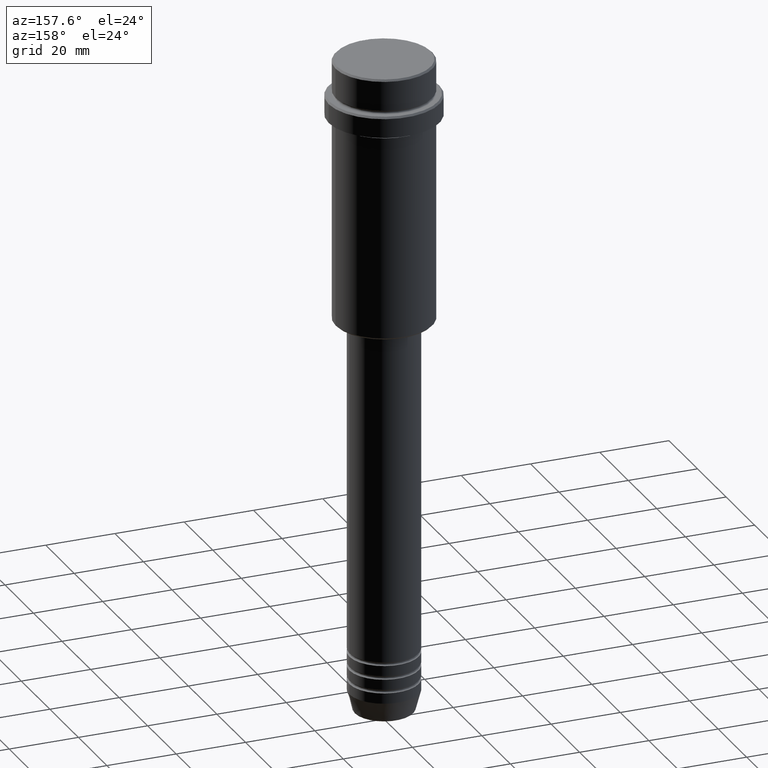
[diagram: clean part render]
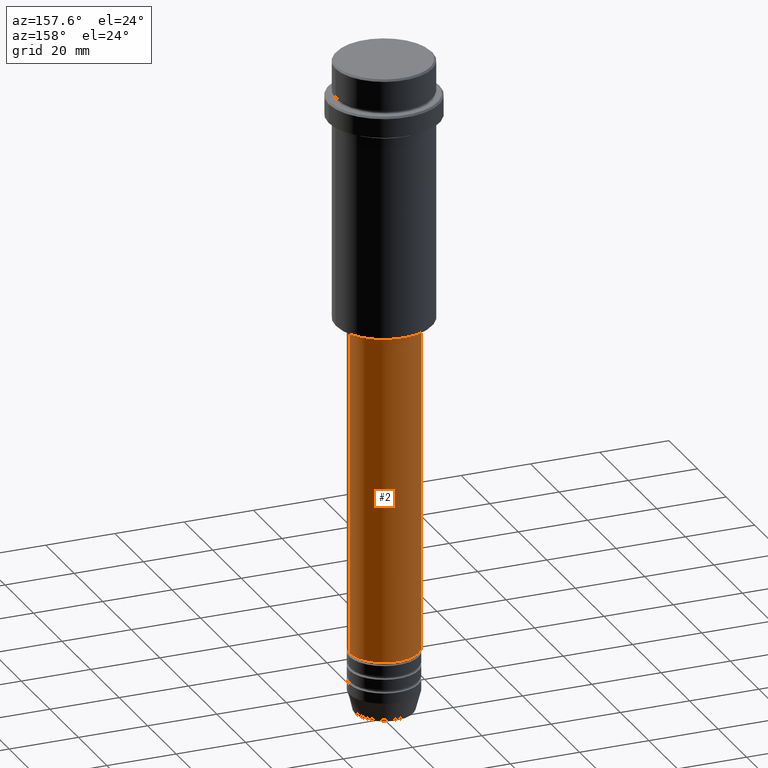
[diagram: same view with one face highlighted and labeled with its STEP entity id]
A machine part, auxiliary view. The second image highlights one B-rep face of the part: STEP entity #2.
In plain terms, the highlighted cylindrical surface (partial cylindrical patch) has radius 10 mm, axis along (-0, -0, 1).
Its self-contained STEP definition (entity closure, byte-faithful):
#2 = ADVANCED_FACE ( 'NONE', ( #235 ), #324, .T. ) ;
#29 = CARTESIAN_POINT ( 'NONE',  ( 10.00000000000000000, 0.000000000000000000, -171.9999999999999147 ) ) ;
#84 = ORIENTED_EDGE ( 'NONE', *, *, #95, .T. ) ;
#95 = EDGE_CURVE ( 'NONE', #724, #302, #182, .T. ) ;
#182 = LINE ( 'NONE', #670, #397 ) ;
#196 = AXIS2_PLACEMENT_3D ( 'NONE', #1233, #1335, #894 ) ;
#235 = FACE_OUTER_BOUND ( 'NONE', #912, .T. ) ;
#302 = VERTEX_POINT ( 'NONE', #888 ) ;
#324 = CYLINDRICAL_SURFACE ( 'NONE', #949, 10.00000000000000178 ) ;
#397 = VECTOR ( 'NONE', #892, 1000.000000000000000 ) ;
#467 = VERTEX_POINT ( 'NONE', #695 ) ;
#527 = EDGE_CURVE ( 'NONE', #766, #724, #950, .T. ) ;
#559 = DIRECTION ( 'NONE',  ( 1.000000000000000000, 0.000000000000000000, 0.000000000000000000 ) ) ;
#596 = EDGE_CURVE ( 'NONE', #766, #467, #845, .T. ) ;
#640 = CARTESIAN_POINT ( 'NONE',  ( 0.000000000000000000, 0.000000000000000000, -171.9999999999999147 ) ) ;
#656 = ORIENTED_EDGE ( 'NONE', *, *, #1255, .F. ) ;
#668 = DIRECTION ( 'NONE',  ( -0.000000000000000000, -0.000000000000000000, 1.000000000000000000 ) ) ;
#670 = CARTESIAN_POINT ( 'NONE',  ( -10.00000000000000178, 1.224646799147353454E-15, 0.000000000000000000 ) ) ;
#695 = CARTESIAN_POINT ( 'NONE',  ( 10.00000000000000178, 0.000000000000000000, -77.00000000000000000 ) ) ;
#721 = DIRECTION ( 'NONE',  ( -0.000000000000000000, -0.000000000000000000, 1.000000000000000000 ) ) ;
#724 = VERTEX_POINT ( 'NONE', #1283 ) ;
#752 = ORIENTED_EDGE ( 'NONE', *, *, #596, .F. ) ;
#766 = VERTEX_POINT ( 'NONE', #29 ) ;
#845 = LINE ( 'NONE', #1410, #1067 ) ;
#882 = CARTESIAN_POINT ( 'NONE',  ( 0.000000000000000000, 0.000000000000000000, 0.000000000000000000 ) ) ;
#888 = CARTESIAN_POINT ( 'NONE',  ( -10.00000000000000178, 1.224646799147353454E-15, -77.00000000000000000 ) ) ;
#892 = DIRECTION ( 'NONE',  ( -0.000000000000000000, -0.000000000000000000, 1.000000000000000000 ) ) ;
#894 = DIRECTION ( 'NONE',  ( 1.000000000000000000, 0.000000000000000000, 0.000000000000000000 ) ) ;
#912 = EDGE_LOOP ( 'NONE', ( #1273, #84, #656, #752 ) ) ;
#922 = AXIS2_PLACEMENT_3D ( 'NONE', #640, #1388, #1072 ) ;
#949 = AXIS2_PLACEMENT_3D ( 'NONE', #882, #668, #559 ) ;
#950 = CIRCLE ( 'NONE', #922, 10.00000000000000000 ) ;
#1067 = VECTOR ( 'NONE', #721, 1000.000000000000000 ) ;
#1070 = CIRCLE ( 'NONE', #196, 10.00000000000000178 ) ;
#1072 = DIRECTION ( 'NONE',  ( 1.000000000000000000, 0.000000000000000000, 0.000000000000000000 ) ) ;
#1233 = CARTESIAN_POINT ( 'NONE',  ( 0.000000000000000000, 0.000000000000000000, -77.00000000000000000 ) ) ;
#1255 = EDGE_CURVE ( 'NONE', #467, #302, #1070, .T. ) ;
#1273 = ORIENTED_EDGE ( 'NONE', *, *, #527, .T. ) ;
#1283 = CARTESIAN_POINT ( 'NONE',  ( -10.00000000000000000, 1.224646799147353256E-15, -171.9999999999999147 ) ) ;
#1335 = DIRECTION ( 'NONE',  ( -0.000000000000000000, -0.000000000000000000, 1.000000000000000000 ) ) ;
#1388 = DIRECTION ( 'NONE',  ( -0.000000000000000000, -0.000000000000000000, 1.000000000000000000 ) ) ;
#1410 = CARTESIAN_POINT ( 'NONE',  ( 10.00000000000000178, 0.000000000000000000, 0.000000000000000000 ) ) ;